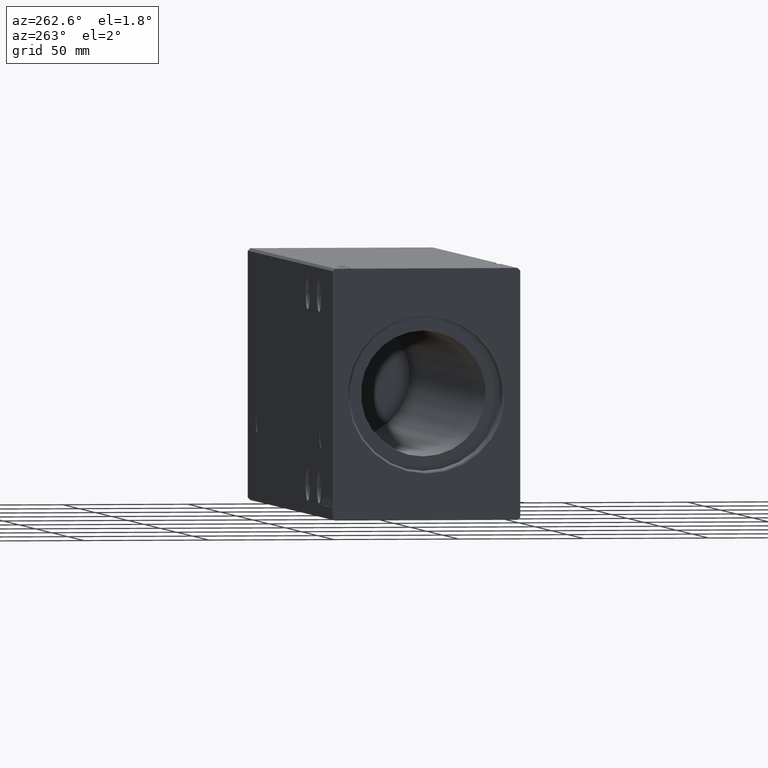
[diagram: clean part render]
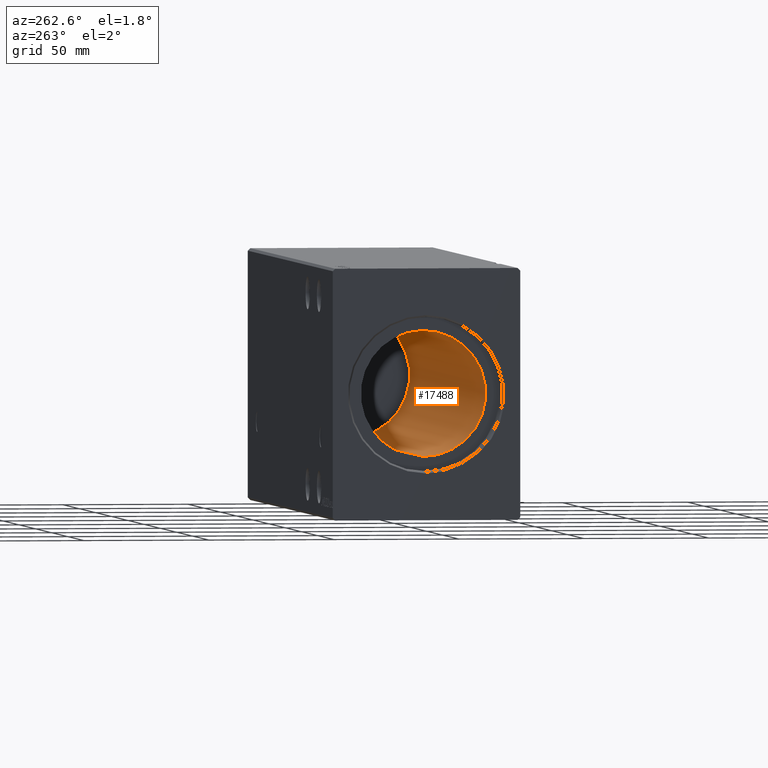
[diagram: same view with one face highlighted and labeled with its STEP entity id]
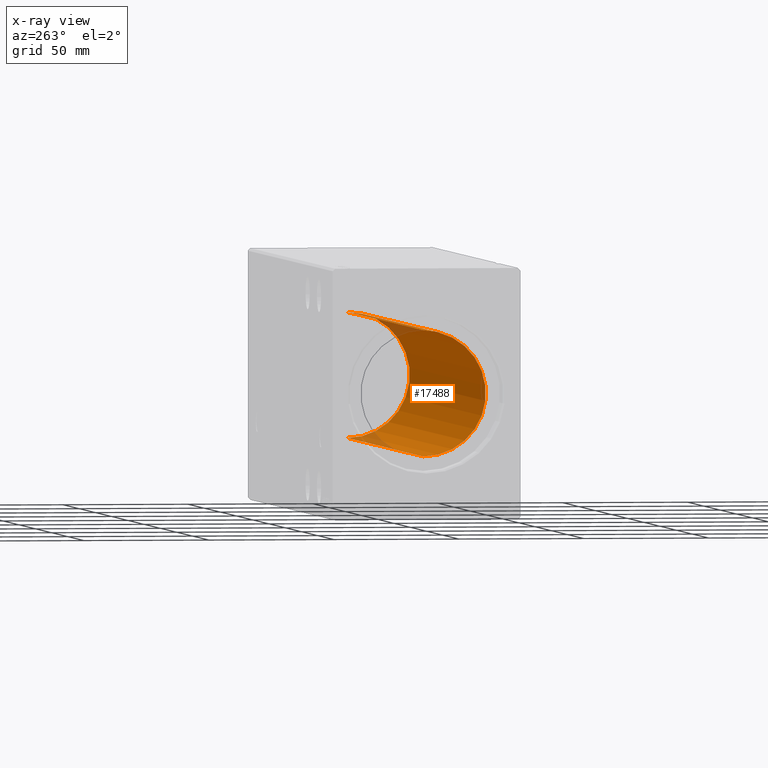
[diagram: x-ray of the same camera — body ghosted, the highlighted face saturated]
A machine part, auxiliary view. The second image highlights one B-rep face of the part: STEP entity #17488.
The next image is the same camera in x-ray: the body ghosted, the highlighted face saturated — about 6% of this face is hidden behind the body in this view.
In plain terms, the highlighted cylindrical surface (partial cylindrical patch) has radius 25 mm, axis along (-1, -0, -0).
Its self-contained STEP definition (entity closure, byte-faithful):
#1128 = EDGE_CURVE ( 'NONE', #8531, #28750, #25035, .T. ) ;
#1784 = CYLINDRICAL_SURFACE ( 'NONE', #39640, 25.00000000000000000 ) ;
#2052 = DIRECTION ( 'NONE',  ( -1.000000000000000000, -0.000000000000000000, -0.000000000000000000 ) ) ;
#2901 = LINE ( 'NONE', #6284, #20043 ) ;
#6284 = CARTESIAN_POINT ( 'NONE',  ( 244.1999999999999886, 3.061616997868382254E-15, -25.00000000000000000 ) ) ;
#8531 = VERTEX_POINT ( 'NONE', #35572 ) ;
#9540 = ORIENTED_EDGE ( 'NONE', *, *, #12515, .F. ) ;
#11768 = FACE_OUTER_BOUND ( 'NONE', #22157, .T. ) ;
#11772 = CIRCLE ( 'NONE', #33461, 25.00000000000000000 ) ;
#11984 = DIRECTION ( 'NONE',  ( -1.000000000000000000, -0.000000000000000000, -0.000000000000000000 ) ) ;
#12515 = EDGE_CURVE ( 'NONE', #23150, #28750, #23615, .T. ) ;
#13860 = CARTESIAN_POINT ( 'NONE',  ( 244.1999999999999886, 0.000000000000000000, 25.00000000000000000 ) ) ;
#16168 = CARTESIAN_POINT ( 'NONE',  ( 10.00000000000000888, 0.000000000000000000, 0.000000000000000000 ) ) ;
#16896 = ORIENTED_EDGE ( 'NONE', *, *, #24410, .T. ) ;
#17488 = ADVANCED_FACE ( 'NONE', ( #11768 ), #1784, .F. ) ;
#18270 = AXIS2_PLACEMENT_3D ( 'NONE', #16168, #25911, #35490 ) ;
#19018 = EDGE_CURVE ( 'NONE', #34438, #23150, #11772, .T. ) ;
#20041 = ORIENTED_EDGE ( 'NONE', *, *, #19018, .F. ) ;
#20043 = VECTOR ( 'NONE', #2052, 1000.000000000000000 ) ;
#21106 = CARTESIAN_POINT ( 'NONE',  ( 244.1999999999999886, 0.000000000000000000, 0.000000000000000000 ) ) ;
#22157 = EDGE_LOOP ( 'NONE', ( #20041, #16896, #32378, #9540 ) ) ;
#23126 = CARTESIAN_POINT ( 'NONE',  ( 244.1999999999999886, 0.000000000000000000, 0.000000000000000000 ) ) ;
#23150 = VERTEX_POINT ( 'NONE', #28284 ) ;
#23615 = LINE ( 'NONE', #13860, #29379 ) ;
#24410 = EDGE_CURVE ( 'NONE', #34438, #8531, #2901, .T. ) ;
#24493 = DIRECTION ( 'NONE',  ( 0.000000000000000000, 0.000000000000000000, 1.000000000000000000 ) ) ;
#25035 = CIRCLE ( 'NONE', #18270, 25.00000000000000000 ) ;
#25911 = DIRECTION ( 'NONE',  ( -1.000000000000000000, 0.000000000000000000, 0.000000000000000000 ) ) ;
#26732 = DIRECTION ( 'NONE',  ( -1.000000000000000000, 0.000000000000000000, 0.000000000000000000 ) ) ;
#28284 = CARTESIAN_POINT ( 'NONE',  ( 244.1999999999999886, 0.000000000000000000, 25.00000000000000000 ) ) ;
#28750 = VERTEX_POINT ( 'NONE', #36493 ) ;
#29372 = DIRECTION ( 'NONE',  ( -1.000000000000000000, -0.000000000000000000, -0.000000000000000000 ) ) ;
#29379 = VECTOR ( 'NONE', #29372, 1000.000000000000000 ) ;
#31607 = CARTESIAN_POINT ( 'NONE',  ( 244.1999999999999886, 3.061616997868382254E-15, -25.00000000000000000 ) ) ;
#32378 = ORIENTED_EDGE ( 'NONE', *, *, #1128, .T. ) ;
#33461 = AXIS2_PLACEMENT_3D ( 'NONE', #23126, #26732, #36312 ) ;
#34438 = VERTEX_POINT ( 'NONE', #31607 ) ;
#35490 = DIRECTION ( 'NONE',  ( 0.000000000000000000, 0.000000000000000000, 1.000000000000000000 ) ) ;
#35572 = CARTESIAN_POINT ( 'NONE',  ( 10.00000000000000888, 3.061616997868382254E-15, -25.00000000000000000 ) ) ;
#36312 = DIRECTION ( 'NONE',  ( 0.000000000000000000, 0.000000000000000000, 1.000000000000000000 ) ) ;
#36493 = CARTESIAN_POINT ( 'NONE',  ( 10.00000000000000888, 0.000000000000000000, 25.00000000000000000 ) ) ;
#39640 = AXIS2_PLACEMENT_3D ( 'NONE', #21106, #11984, #24493 ) ;